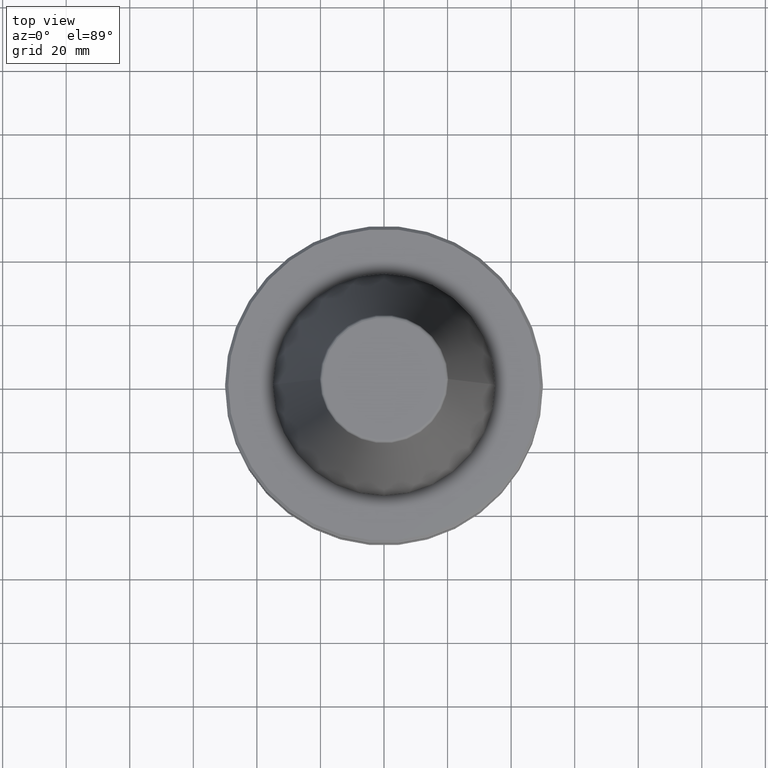
[diagram: clean part render]
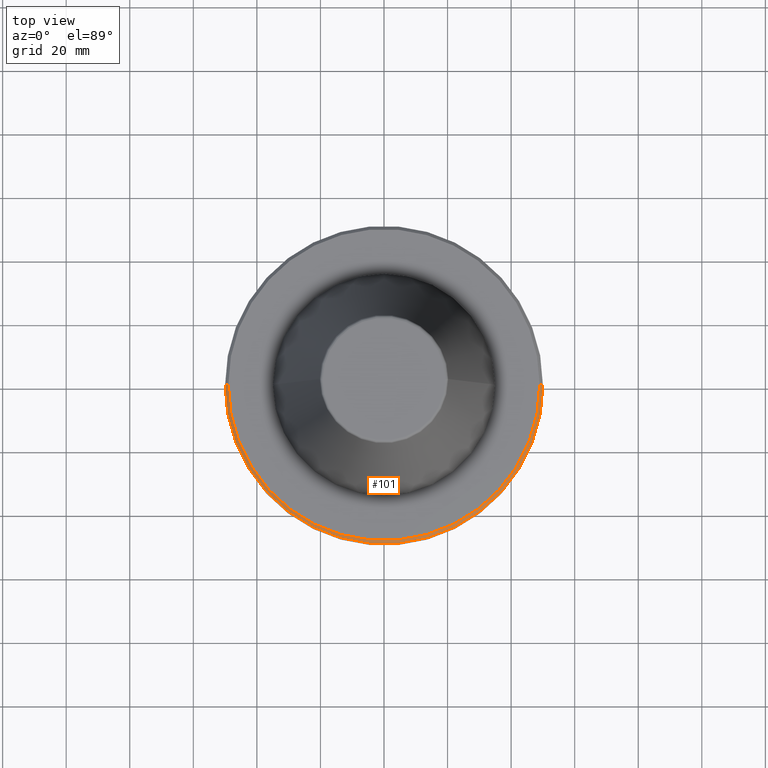
[diagram: same view with one face highlighted and labeled with its STEP entity id]
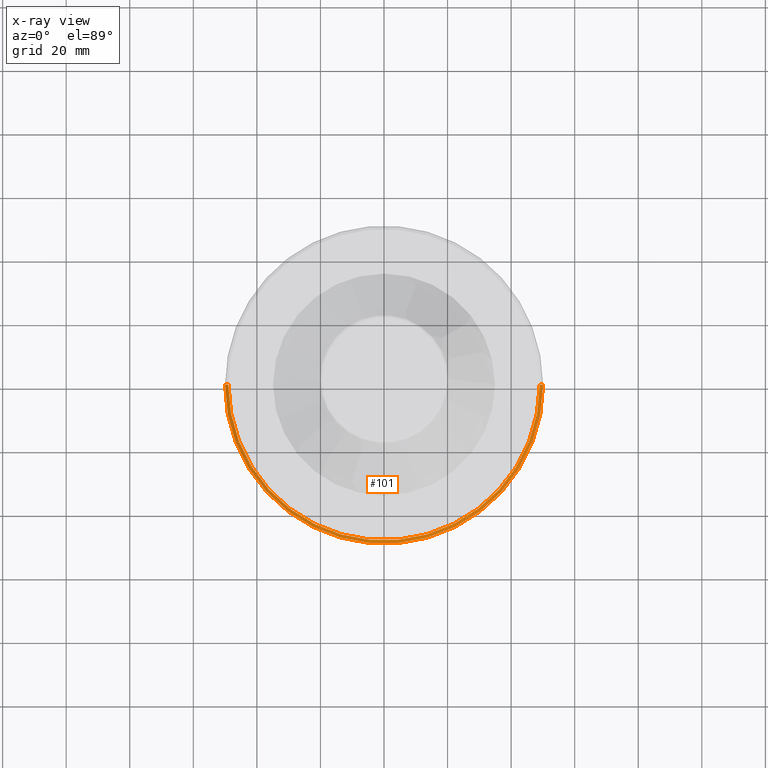
[diagram: x-ray of the same camera — body ghosted, the highlighted face saturated]
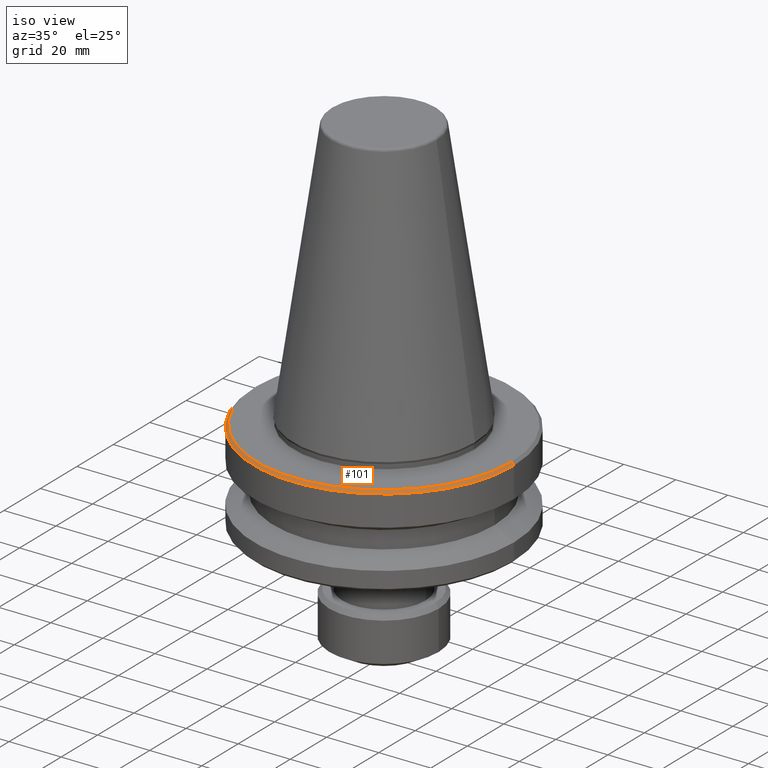
[diagram: same view with one face highlighted and labeled with its STEP entity id]
A machine part, top view. The second image highlights one B-rep face of the part: STEP entity #101.
The next image is the same camera in x-ray: the body ghosted, the highlighted face saturated — about 0% of this face is hidden behind the body in this view.
A second angle (iso view) of the same face is appended — the face is thin or edge-on in the first view.
In plain terms, the highlighted conical surface has half-angle 45 deg.
Its self-contained STEP definition (entity closure, byte-faithful):
#45 = VERTEX_POINT ( 'NONE', #299 ) ;
#51 = AXIS2_PLACEMENT_3D ( 'NONE', #1220, #654, #81 ) ;
#76 = EDGE_LOOP ( 'NONE', ( #102, #888, #1068, #694 ) ) ;
#81 = DIRECTION ( 'NONE',  ( 1.000000000000000000, 0.0000000000000000000, 0.0000000000000000000 ) ) ;
#101 = ADVANCED_FACE ( 'NONE', ( #655 ), #904, .T. ) ;
#102 = ORIENTED_EDGE ( 'NONE', *, *, #146, .F. ) ;
#131 = DIRECTION ( 'NONE',  ( -0.7071067811865474600, 0.0000000000000000000, -0.7071067811865475700 ) ) ;
#146 = EDGE_CURVE ( 'NONE', #378, #348, #379, .T. ) ;
#190 = DIRECTION ( 'NONE',  ( -0.0000000000000000000, -0.0000000000000000000, 1.000000000000000000 ) ) ;
#210 = VECTOR ( 'NONE', #131, 1000.000000000000000 ) ;
#299 = CARTESIAN_POINT ( 'NONE',  ( -49.00000000000026300, 0.0000000000000000000, -3.000000000000058200 ) ) ;
#302 = DIRECTION ( 'NONE',  ( 0.7071067811865474600, 8.659560562354931600E-017, -0.7071067811865475700 ) ) ;
#307 = AXIS2_PLACEMENT_3D ( 'NONE', #346, #1143, #1165 ) ;
#346 = CARTESIAN_POINT ( 'NONE',  ( 0.0000000000000000000, 0.0000000000000000000, -4.000000000000058600 ) ) ;
#348 = VERTEX_POINT ( 'NONE', #903 ) ;
#378 = VERTEX_POINT ( 'NONE', #1100 ) ;
#379 = LINE ( 'NONE', #879, #600 ) ;
#504 = EDGE_CURVE ( 'NONE', #1170, #348, #930, .T. ) ;
#600 = VECTOR ( 'NONE', #302, 1000.000000000000000 ) ;
#654 = DIRECTION ( 'NONE',  ( -0.0000000000000000000, -0.0000000000000000000, 1.000000000000000000 ) ) ;
#655 = FACE_OUTER_BOUND ( 'NONE', #76, .T. ) ;
#694 = ORIENTED_EDGE ( 'NONE', *, *, #504, .T. ) ;
#760 = AXIS2_PLACEMENT_3D ( 'NONE', #764, #190, #852 ) ;
#764 = CARTESIAN_POINT ( 'NONE',  ( 0.0000000000000000000, 0.0000000000000000000, -3.000000000000058200 ) ) ;
#770 = EDGE_CURVE ( 'NONE', #45, #378, #922, .T. ) ;
#780 = LINE ( 'NONE', #808, #210 ) ;
#808 = CARTESIAN_POINT ( 'NONE',  ( -50.00000000000027000, 0.0000000000000000000, -4.000000000000058600 ) ) ;
#829 = CARTESIAN_POINT ( 'NONE',  ( -50.00000000000027000, 6.123233995736798400E-015, -4.000000000000058600 ) ) ;
#852 = DIRECTION ( 'NONE',  ( 1.000000000000000000, 0.0000000000000000000, 0.0000000000000000000 ) ) ;
#879 = CARTESIAN_POINT ( 'NONE',  ( 50.00000000000027000, 6.123233995736798400E-015, -4.000000000000058600 ) ) ;
#888 = ORIENTED_EDGE ( 'NONE', *, *, #770, .F. ) ;
#903 = CARTESIAN_POINT ( 'NONE',  ( 50.00000000000027000, 0.0000000000000000000, -4.000000000000058600 ) ) ;
#904 = CONICAL_SURFACE ( 'NONE', #307, 50.00000000000027000, 0.7853981633974482800 ) ;
#922 = CIRCLE ( 'NONE', #760, 49.00000000000026300 ) ;
#930 = CIRCLE ( 'NONE', #51, 50.00000000000027000 ) ;
#1067 = EDGE_CURVE ( 'NONE', #45, #1170, #780, .T. ) ;
#1068 = ORIENTED_EDGE ( 'NONE', *, *, #1067, .T. ) ;
#1100 = CARTESIAN_POINT ( 'NONE',  ( 49.00000000000026300, 6.062001655779430900E-015, -3.000000000000058200 ) ) ;
#1143 = DIRECTION ( 'NONE',  ( 0.0000000000000000000, 0.0000000000000000000, -1.000000000000000000 ) ) ;
#1165 = DIRECTION ( 'NONE',  ( -1.000000000000000000, 0.0000000000000000000, 0.0000000000000000000 ) ) ;
#1170 = VERTEX_POINT ( 'NONE', #829 ) ;
#1220 = CARTESIAN_POINT ( 'NONE',  ( 0.0000000000000000000, 0.0000000000000000000, -4.000000000000058600 ) ) ;